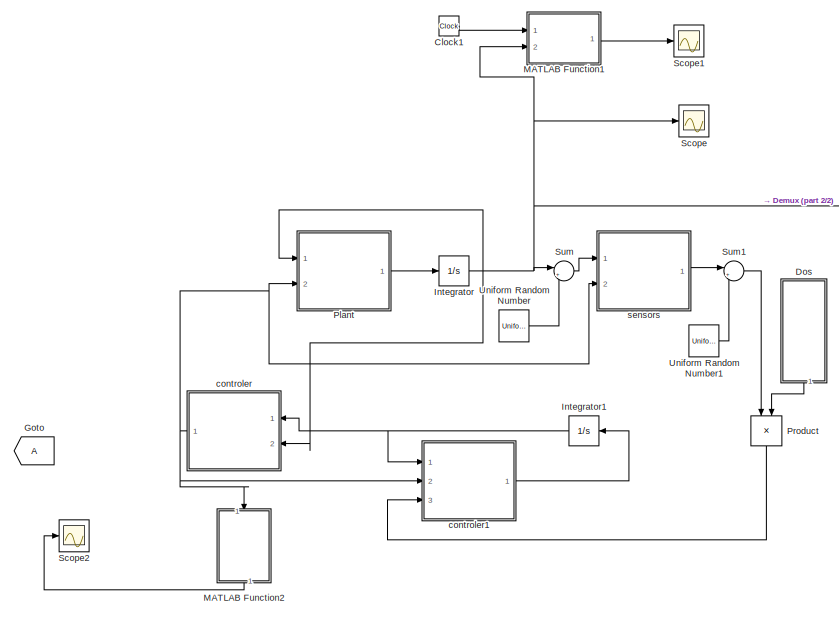
[diagram: root canvas - part 1/2, left side, full height]
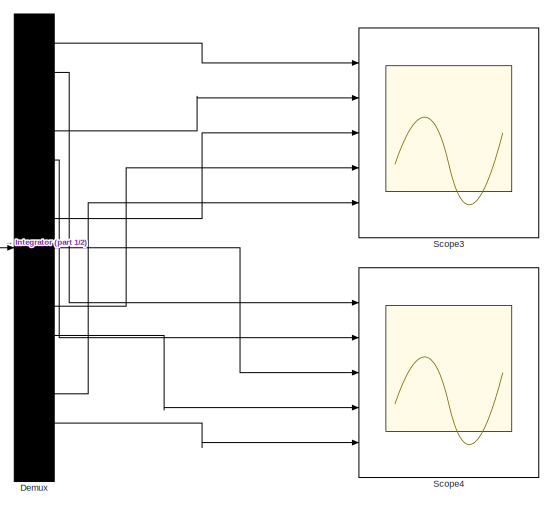
[diagram: root canvas - part 2/2, right side, full height]
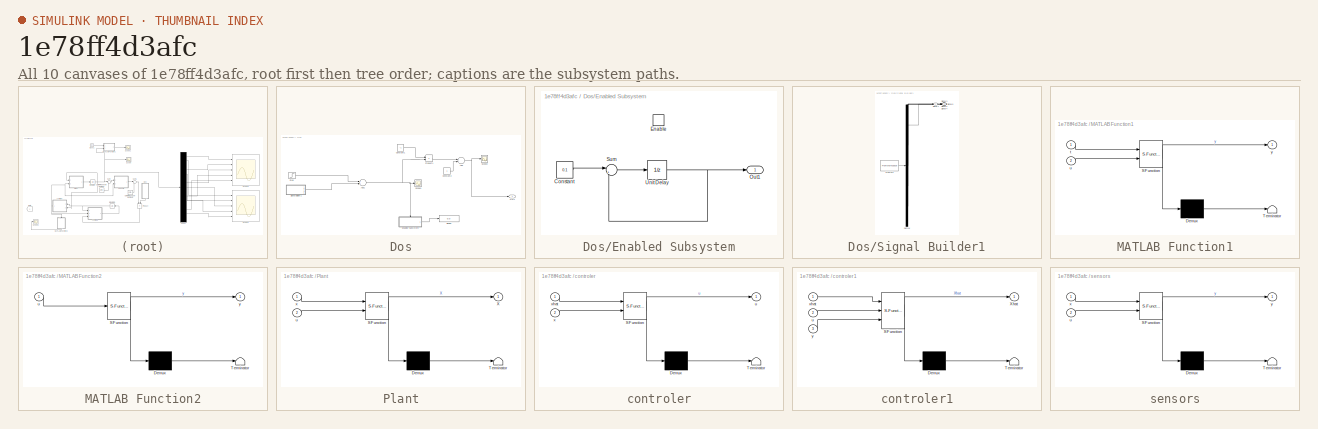
[diagram: thumbnail index - all 10 canvases of the model, root first then tree order]
MODEL slx_1e78ff4d3afc
KIND model
CONFIG AbsTol = auto
CONFIG EnableMultiTasking = off
CONFIG FixedStep = auto
CONFIG MaxStep = auto
CONFIG MinStep = auto
CONFIG RelTol = 1e-3
CONFIG SampleTimeConstraint = Unconstrained
CONFIG Solver = VariableStepAuto
CONFIG SolverName = VariableStepAuto
CONFIG StartTime = 0.0
CONFIG StopTime = 5
BLOCK [Clock] Clock1
BLOCK [Demux] Demux
  DisplayOption = bar
  Outputs = 15
  Ports = [1, 15]
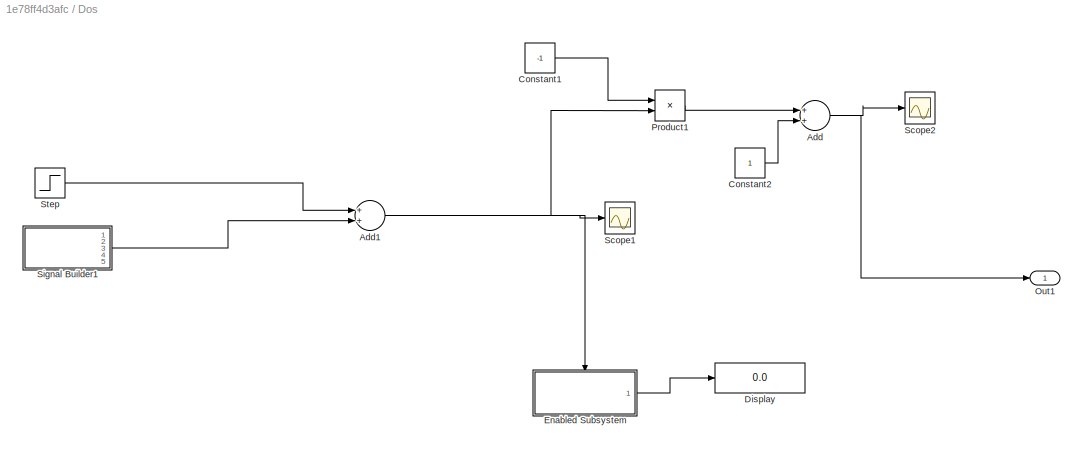
BLOCK [SubSystem] Dos
  Ports = [0, 1]
  RequestExecContextInheritance = off
BLOCK [Sum] Dos/Add
  InputSameDT = off
  OutDataTypeStr = Inherit: Inherit via internal rule
  Ports = [2, 1]
  SaturateOnIntegerOverflow = off
BLOCK [Sum] Dos/Add1
  InputSameDT = off
  OutDataTypeStr = Inherit: Inherit via internal rule
  Ports = [2, 1]
  SaturateOnIntegerOverflow = off
BLOCK [Constant] Dos/Constant1
  Value = -1
BLOCK [Constant] Dos/Constant2
BLOCK [Display] Dos/Display
  Decimation = 1
  Ports = [1]
BLOCK [SubSystem] Dos/Enabled Subsystem
  Ports = [0, 1, 1]
  RequestExecContextInheritance = off
  TreatAsAtomicUnit = on
BLOCK [Constant] Dos/Enabled Subsystem/Constant
  Value = 0.1
BLOCK [EnablePort] Dos/Enabled Subsystem/Enable
  Ports = []
BLOCK [Outport] Dos/Enabled Subsystem/Out1
  IconDisplay = Port number
BLOCK [Sum] Dos/Enabled Subsystem/Sum
  IconShape = round
  InputSameDT = off
  Inputs = |++
  OutDataTypeStr = Inherit: Inherit via internal rule
  Ports = [2, 1]
  SaturateOnIntegerOverflow = off
BLOCK [UnitDelay] Dos/Enabled Subsystem/Unit Delay
  InputProcessing = Elements as channels (sample based)
  SampleTime = -1
BLOCK [Outport] Dos/Out1
  IconDisplay = Port number
BLOCK [Product] Dos/Product1
  InputSameDT = off
  OutDataTypeStr = Inherit: Inherit via internal rule
  Ports = [2, 1]
  RndMeth = Floor
  SaturateOnIntegerOverflow = off
BLOCK [Scope] Dos/Scope1
  Floating = off
  NumInputPorts = 1
  Ports = [1]
  ScopeSpecificationString = Simulink.scopes.TimeScopeBlockCfg('CurrentConfiguration', extmgr.ConfigurationSet(extmgr.Configuration('Core','General UI',true),extmgr.Configuration('Core','Source UI',true),extmgr.Configuration('Sources','WiredSimulink',true,'DataLoggingVariableName','DOS','DataLogging',true,'DataLoggingSaveFormat','StructureWithTime'),extmgr.Configuration('Visuals','Time Domain',true,'SerializedDisplays',{struc...<+1575ch>
BLOCK [Scope] Dos/Scope2
  Floating = off
  NumInputPorts = 1
  Ports = [1]
  ScopeSpecificationString = Simulink.scopes.TimeScopeBlockCfg('CurrentConfiguration', extmgr.ConfigurationSet(extmgr.Configuration('Core','General UI',true),extmgr.Configuration('Core','Source UI',true),extmgr.Configuration('Sources','WiredSimulink',true,'DataLoggingVariableName','ScopeData1'),extmgr.Configuration('Visuals','Time Domain',true,'SerializedDisplays',{struct('MinYLimReal','-0.125','MaxYLimReal','1.125','YLabelRe...<+1386ch>
BLOCK [SubSystem] Dos/Signal Builder1
  ClipboardFcn = sigbuilder_block('clipboard');
  CloseFcn = sigbuilder_block('close');
  ContinueFcn = sigbuilder_block('continue');
  CopyFcn = sigbuilder_block('copy');
  DeleteFcn = sigbuilder_block('delete');
  LoadFcn = sigbuilder_block('load');
  MaskHideContents = on
  ModelCloseFcn = sigbuilder_block('modelClose');
  NameChangeFcn = sigbuilder_block('namechange');
  OpenFcn = sigbuilder_block('open',[5.4 30 1141.2 522.6 ]);
  PauseFcn = sigbuilder_block('pause');
  Ports = [0, 5]
  PreSaveFcn = sigbuilder_block('preSave');
  RequestExecContextInheritance = off
  StartFcn = sigbuilder_block('start');
  StopFcn = sigbuilder_block('stop');
  Tag = STV Subsys
BLOCK [Demux] Dos/Signal Builder1/Demux
  Outputs = 5
  Ports = [1, 5]
  Tag = STV Demux
BLOCK [FromWorkspace] Dos/Signal Builder1/FromWs
  SampleTime = 0
  Tag = STV FromWs
  VariableName = tuvar
  ZeroCross = on
BLOCK [Outport] Dos/Signal Builder1/Signal 1
  IconDisplay = Port number
  Tag = STV Outport
BLOCK [Outport] Dos/Signal Builder1/Signal 2
  IconDisplay = Port number
  Port = 2
  Tag = STV Outport
BLOCK [Outport] Dos/Signal Builder1/Signal 3
  IconDisplay = Port number
  Port = 3
  Tag = STV Outport
BLOCK [Outport] Dos/Signal Builder1/Signal 4
  IconDisplay = Port number
  Port = 4
  Tag = STV Outport
BLOCK [Outport] Dos/Signal Builder1/Signal 5
  IconDisplay = Port number
  Port = 5
  Tag = STV Outport
BLOCK [Step] Dos/Step
  After = -1
  SampleTime = 15
BLOCK [Goto] Goto
BLOCK [Integrator] Integrator
  InitialCondition = [-7;-6;-5;-4;-3;-2;-1;0;1;2;3;4;5;6;7]
  Ports = [1, 1]
BLOCK [Integrator] Integrator1
  InitialCondition = [-7;-6;-5;-4;-3;-2;-1;0;1;2;3;4;5;6;7]
  Ports = [1, 1]
BLOCK [SubSystem] MATLAB Function1
  ErrorFcn = Stateflow.Translate.translate
  PermitHierarchicalResolution = ExplicitOnly
  Ports = [2, 1]
  RequestExecContextInheritance = off
  SFBlockType = MATLAB Function
  TreatAsAtomicUnit = on
BLOCK [Demux] MATLAB Function1/ Demux 
  Outputs = 1
  Ports = [1, 1]
BLOCK [S-Function] MATLAB Function1/ SFunction 
  EnableBusSupport = on
  FunctionName = sf_sfun
  PortCounts = [2 2]
  Ports = [2, 2]
  SFcnIsStateOwnerBlock = off
  SFunctionDeploymentMode = off
  Tag = Stateflow S-Function withattackleadeeless 6
BLOCK [Terminator] MATLAB Function1/ Terminator 
BLOCK [Inport] MATLAB Function1/t
  IconDisplay = Port number
BLOCK [Inport] MATLAB Function1/u
  IconDisplay = Port number
  Port = 2
BLOCK [Outport] MATLAB Function1/y
  IconDisplay = Port number
BLOCK [SubSystem] MATLAB Function2
  ErrorFcn = Stateflow.Translate.translate
  PermitHierarchicalResolution = ExplicitOnly
  Ports = [1, 1]
  RequestExecContextInheritance = off
  SFBlockType = MATLAB Function
  TreatAsAtomicUnit = on
BLOCK [Demux] MATLAB Function2/ Demux 
  Outputs = 1
  Ports = [1, 1]
BLOCK [S-Function] MATLAB Function2/ SFunction 
  EnableBusSupport = on
  FunctionName = sf_sfun
  PortCounts = [1 2]
  Ports = [1, 2]
  SFcnIsStateOwnerBlock = off
  SFunctionDeploymentMode = off
  Tag = Stateflow S-Function withattackleadeeless 5
BLOCK [Terminator] MATLAB Function2/ Terminator 
BLOCK [Inport] MATLAB Function2/u
  IconDisplay = Port number
BLOCK [Outport] MATLAB Function2/y
  IconDisplay = Port number
BLOCK [SubSystem] Plant
  ErrorFcn = Stateflow.Translate.translate
  PermitHierarchicalResolution = ExplicitOnly
  Ports = [2, 1]
  RequestExecContextInheritance = off
  SFBlockType = MATLAB Function
  TreatAsAtomicUnit = on
BLOCK [Demux] Plant/ Demux 
  Outputs = 1
  Ports = [1, 1]
BLOCK [S-Function] Plant/ SFunction 
  EnableBusSupport = on
  FunctionName = sf_sfun
  PortCounts = [2 2]
  Ports = [2, 2]
  SFcnIsStateOwnerBlock = off
  SFunctionDeploymentMode = off
  Tag = Stateflow S-Function withattackleadeeless 2
BLOCK [Terminator] Plant/ Terminator 
BLOCK [Outport] Plant/X
  IconDisplay = Port number
BLOCK [Inport] Plant/u
  IconDisplay = Port number
  Port = 2
BLOCK [Inport] Plant/x
  IconDisplay = Port number
BLOCK [Product] Product
  InputSameDT = off
  OutDataTypeStr = Inherit: Inherit via internal rule
  Ports = [2, 1]
  RndMeth = Floor
  SaturateOnIntegerOverflow = off
BLOCK [Scope] Scope
  Floating = off
  NumInputPorts = 1
  Ports = [1]
  ScopeSpecificationString = Simulink.scopes.TimeScopeBlockCfg('CurrentConfiguration', extmgr.ConfigurationSet(extmgr.Configuration('Core','General UI',true),extmgr.Configuration('Core','Source UI',true),extmgr.Configuration('Sources','WiredSimulink',true,'DataLogging',true,'DataLoggingVariableName','xwithattack','DataLoggingSaveFormat','StructureWithTime'),extmgr.Configuration('Visuals','Time Domain',true,'SerializedDisplays...<+1694ch>
BLOCK [Scope] Scope1
  Floating = off
  NumInputPorts = 1
  Ports = [1]
  ScopeSpecificationString = Simulink.scopes.TimeScopeBlockCfg('CurrentConfiguration', extmgr.ConfigurationSet(extmgr.Configuration('Core','General UI',true),extmgr.Configuration('Core','Source UI',true),extmgr.Configuration('Sources','WiredSimulink',true,'DataLoggingVariableName','nxwithattack','DataLogging',true,'DataLoggingSaveFormat','StructureWithTime'),extmgr.Configuration('Visuals','Time Domain',true,'SerializedDisplay...<+1549ch>
BLOCK [Scope] Scope2
  Floating = off
  NumInputPorts = 1
  Ports = [1]
  ScopeSpecificationString = Simulink.scopes.TimeScopeBlockCfg('CurrentConfiguration', extmgr.ConfigurationSet(extmgr.Configuration('Core','General UI',true),extmgr.Configuration('Core','Source UI',true),extmgr.Configuration('Sources','WiredSimulink',true,'DataLogging',true,'DataLoggingSaveFormat','StructureWithTime','DataLoggingVariableName','uwithattack'),extmgr.Configuration('Visuals','Time Domain',true,'SerializedDisplays...<+1475ch>
BLOCK [Scope] Scope3
  Floating = off
  NumInputPorts = 5
  Ports = [5]
  ScopeSpecificationString = Simulink.scopes.TimeScopeBlockCfg('CurrentConfiguration', extmgr.ConfigurationSet(extmgr.Configuration('Core','General UI',true),extmgr.Configuration('Core','Source UI',true),extmgr.Configuration('Sources','WiredSimulink',true,'DataLoggingVariableName','xwithattack','DataLoggingSaveFormat','StructureWithTime'),extmgr.Configuration('Visuals','Time Domain',true,'SerializedDisplays',{struct('MinYLimR...<+1512ch>
BLOCK [Scope] Scope4
  Floating = off
  NumInputPorts = 5
  Ports = [5]
  ScopeSpecificationString = Simulink.scopes.TimeScopeBlockCfg('CurrentConfiguration', extmgr.ConfigurationSet(extmgr.Configuration('Core','General UI',true),extmgr.Configuration('Core','Source UI',true),extmgr.Configuration('Sources','WiredSimulink',true,'DataLoggingVariableName','ScopeData4'),extmgr.Configuration('Visuals','Time Domain',true,'SerializedDisplays',{struct('MinYLimReal','-16.4796','MaxYLimReal','9.9564','YLabe...<+1436ch>
BLOCK [Sum] Sum
  IconShape = round
  InputSameDT = off
  Inputs = |++
  OutDataTypeStr = Inherit: Inherit via internal rule
  Ports = [2, 1]
  SaturateOnIntegerOverflow = off
BLOCK [Sum] Sum1
  IconShape = round
  InputSameDT = off
  Inputs = |++
  OutDataTypeStr = Inherit: Inherit via internal rule
  Ports = [2, 1]
  SaturateOnIntegerOverflow = off
BLOCK [UniformRandomNumber] Uniform Random Number
  Maximum = 0.01
  Minimum = -0.01
  SampleTime = Ts
BLOCK [UniformRandomNumber] Uniform Random Number1
  Maximum = 0.01
  Minimum = -0.01
  SampleTime = Ts
BLOCK [SubSystem] controler
  ErrorFcn = Stateflow.Translate.translate
  PermitHierarchicalResolution = ExplicitOnly
  Ports = [2, 1]
  RequestExecContextInheritance = off
  SFBlockType = MATLAB Function
  TreatAsAtomicUnit = on
BLOCK [Demux] controler/ Demux 
  Outputs = 1
  Ports = [1, 1]
BLOCK [S-Function] controler/ SFunction 
  EnableBusSupport = on
  FunctionName = sf_sfun
  PortCounts = [2 2]
  Ports = [2, 2]
  SFcnIsStateOwnerBlock = off
  SFunctionDeploymentMode = off
  Tag = Stateflow S-Function withattackleadeeless 3
BLOCK [Terminator] controler/ Terminator 
BLOCK [Outport] controler/u
  IconDisplay = Port number
BLOCK [Inport] controler/x
  IconDisplay = Port number
  Port = 2
BLOCK [Inport] controler/xhat
  IconDisplay = Port number
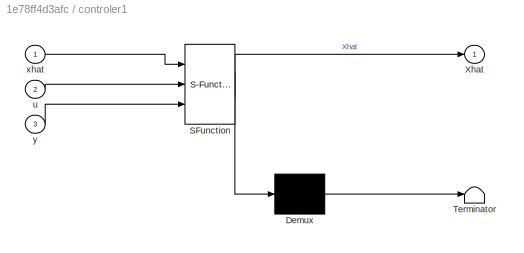
BLOCK [SubSystem] controler1
  ErrorFcn = Stateflow.Translate.translate
  PermitHierarchicalResolution = ExplicitOnly
  Ports = [3, 1]
  RequestExecContextInheritance = off
  SFBlockType = MATLAB Function
  TreatAsAtomicUnit = on
BLOCK [Demux] controler1/ Demux 
  Outputs = 1
  Ports = [1, 1]
BLOCK [S-Function] controler1/ SFunction 
  EnableBusSupport = on
  FunctionName = sf_sfun
  PortCounts = [3 2]
  Ports = [3, 2]
  SFcnIsStateOwnerBlock = off
  SFunctionDeploymentMode = off
  Tag = Stateflow S-Function withattackleadeeless 4
BLOCK [Terminator] controler1/ Terminator 
BLOCK [Outport] controler1/Xhat
  IconDisplay = Port number
BLOCK [Inport] controler1/u
  IconDisplay = Port number
  Port = 2
BLOCK [Inport] controler1/xhat
  IconDisplay = Port number
BLOCK [Inport] controler1/y
  IconDisplay = Port number
  Port = 3
BLOCK [SubSystem] sensors
  ErrorFcn = Stateflow.Translate.translate
  PermitHierarchicalResolution = ExplicitOnly
  Ports = [2, 1]
  RequestExecContextInheritance = off
  SFBlockType = MATLAB Function
  TreatAsAtomicUnit = on
BLOCK [Demux] sensors/ Demux 
  Outputs = 1
  Ports = [1, 1]
BLOCK [S-Function] sensors/ SFunction 
  EnableBusSupport = on
  FunctionName = sf_sfun
  PortCounts = [2 2]
  Ports = [2, 2]
  SFcnIsStateOwnerBlock = off
  SFunctionDeploymentMode = off
  Tag = Stateflow S-Function withattackleadeeless 1
BLOCK [Terminator] sensors/ Terminator 
BLOCK [Inport] sensors/u
  IconDisplay = Port number
  Port = 2
BLOCK [Inport] sensors/x
  IconDisplay = Port number
BLOCK [Outport] sensors/y
  IconDisplay = Port number
LINE Clock1:1 -> MATLAB Function1:1
LINE Demux:1 -> Scope3:1
LINE Demux:10 -> Scope3:4
LINE Demux:11 -> Scope4:4
LINE Demux:13 -> Scope3:5
LINE Demux:14 -> Scope4:5
LINE Demux:2 -> Scope4:1
LINE Demux:4 -> Scope3:2
LINE Demux:5 -> Scope4:2
LINE Demux:7 -> Scope3:3
LINE Demux:8 -> Scope4:3
NET Dos/Add1:1 -> Dos/Enabled Subsystem:enable, Dos/Product1:2, Dos/Scope1:1
NET Dos/Add:1 -> Dos/Out1:1, Dos/Scope2:1
LINE Dos/Constant1:1 -> Dos/Product1:1
LINE Dos/Constant2:1 -> Dos/Add:2
LINE Dos/Enabled Subsystem/Constant:1 -> Dos/Enabled Subsystem/Sum:1
LINE Dos/Enabled Subsystem/Sum:1 -> Dos/Enabled Subsystem/Unit Delay:1
NET Dos/Enabled Subsystem/Unit Delay:1 -> Dos/Enabled Subsystem/Out1:1, Dos/Enabled Subsystem/Sum:2
LINE Dos/Enabled Subsystem:1 -> Dos/Display:1
LINE Dos/Product1:1 -> Dos/Add:1
LINE Dos/Signal Builder1:3 -> Dos/Add1:2
LINE Dos/Step:1 -> Dos/Add1:1
LINE Dos:1 -> Product:2
NET Integrator1:1 -> controler1:1, controler:1
NET Integrator:1 -> Demux:1, MATLAB Function1:2, Plant:1, Scope:1, Sum:1, controler:2
LINE MATLAB Function1:1 -> Scope1:1
LINE MATLAB Function2:1 -> Scope2:1
LINE Plant:1 -> Integrator:1
LINE Product:1 -> controler1:3
LINE Sum1:1 -> Product:1
LINE Sum:1 -> sensors:1
LINE Uniform Random Number1:1 -> Sum1:2
LINE Uniform Random Number:1 -> Sum:2
LINE controler1:1 -> Integrator1:1
NET controler:1 -> MATLAB Function2:1, Plant:2, controler1:2, sensors:2
LINE sensors:1 -> Sum1:1
note: NET lines group one-source signal fan-out (src -> all destinations, sorted); 1:1 wires keep LINE
CHART sensors states=1 transitions=1
  STATE_LABEL 'eML_blk_kernel()'
  STATE_LABEL 'SCRIPT:\nfunction y = fcn(x,u)\nA=[-25.7442 -14.1298 -8.6868;16 0 0;0 16 0];\nB=[8;0;0];\nC=[2.3498 -0.2552 3.3462;3.8307 -3.7641 3.9829;4.4177 -5.2315 4.9];\nD=[-.5478;-.4304;-.4304];\nC0=kron(eye(5),C);\nD0=kron(eye(5),D);\ny=C0*x+D0*u;\n\n'
CHART Plant states=1 transitions=1
  STATE_LABEL 'eML_blk_kernel()'
  STATE_LABEL 'SCRIPT:\nfunction X = fcn(x,u)\nA=[-25.7442 -14.1298 -8.6868;16 0 0;0 16 0];\nB=[8;0;0];\nC=[2.3498 -0.2552 3.3462;3.8307 -3.7641 3.9829;4.4177 -5.2315 4.9];\nD=[-.5478;-.4304;-.4304];\nA0=kron(eye(5),A);\nB0=kron(eye(5),B);\nX =A0*x+B0*u;\n'
CHART controler states=1 transitions=1
  STATE_LABEL 'eML_blk_kernel()'
  STATE_LABEL "SCRIPT:\nfunction u = fcn(xhat,x)\nK=[1.0766 -.3101 0];\nc=0.1;\nL=[ 2 0 0 0 -1; -1 2 0 0 0; -1 0 1 0 0; 0 -1 0 1 0; 0 -1 -1 -1 3];\ne=x-xhat;\n% u=-c*kron(L,K)*xhat;\nK=[1.0766 -.3101 0];\nc=0.5;\nA=[.9226 -.6330 0;1 0 0;0 1 0];\nB=[1;0;0];\nL=[ 2 0 0 0 -1; -1 2 0 0 0; -1 0 1 0 0; 0 -1 0 1 0; 0 -1 -1 -1 3];\nA0=kron(eye(5),A);\nB0=kron(eye(5),B);\nz=kron(L,eye(3));\nQ=z'*eye(15)*z;\nq1=[0.8922   -0.6194         ...<+784ch>"
CHART controler1 states=1 transitions=1
  STATE_LABEL 'eML_blk_kernel()'
  STATE_LABEL 'SCRIPT:\nfunction Xhat = fcn(xhat,u,y)\nA=[-25.7442 -14.1298 -8.6868;16 0 0;0 16 0];\nB=[8;0;0];\nC=[2.3498 -0.2552 3.3462;3.8307 -3.7641 3.9829;4.4177 -5.2315 4.9];\nD=[-.5478;-.4304;-.4304];\nG=[0.0450 .0187 .0338;.0005 .0252 .045;-.0631 -.0445 -.0827];\nC0=kron(eye(5),C);\nD0=kron(eye(5),D);\nA0=kron(eye(5),A);\nB0=kron(eye(5),B);\nG0=kron(eye(5),G);\nyhat=C0*xhat+D0*u;\nXhat=A0*xhat+B0*u+G0*(y-yhat);\n'
CHART MATLAB Function2 states=1 transitions=1
  STATE_LABEL 'eML_blk_kernel()'
  STATE_LABEL 'SCRIPT:\nfunction y = fcn( u)\ny=norm(u);\n'
CHART MATLAB Function1 states=1 transitions=1
  STATE_LABEL 'eML_blk_kernel()'
  STATE_LABEL 'SCRIPT:\nfunction y = fcn(t, u)\ny=norm(u);\n'
